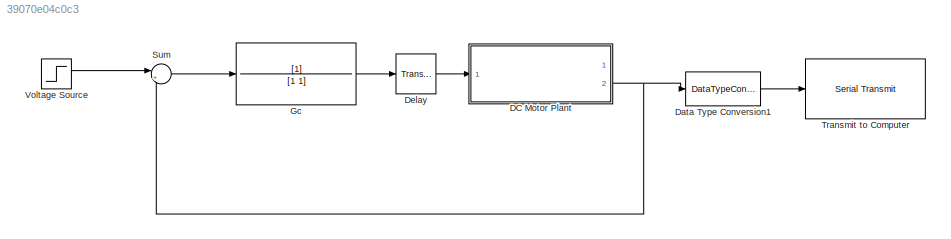
MODEL slx_39070e04c0c3
KIND model
CONFIG AbsTol = auto
CONFIG EnableMultiTasking = on
CONFIG FixedStep = auto
CONFIG MaxStep = auto
CONFIG MinStep = auto
CONFIG RelTol = 1e-3
CONFIG SampleTimeConstraint = Unconstrained
CONFIG Solver = FixedStepAuto
CONFIG SolverName = FixedStepAuto
CONFIG StartTime = 0.0
CONFIG StopTime = 10.0
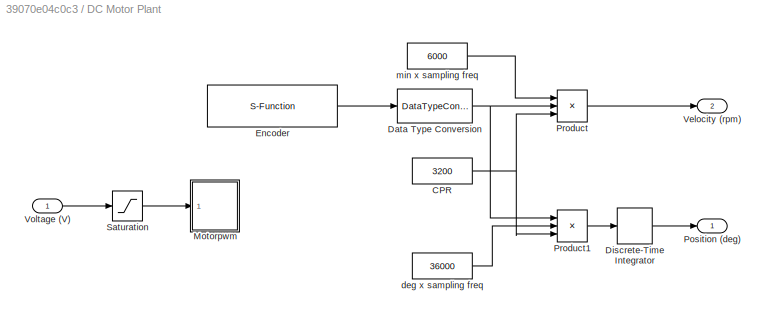
BLOCK [SubSystem] DC Motor Plant
  Ports = [1, 2]
  RequestExecContextInheritance = off
BLOCK [Constant] DC Motor Plant/CPR
  Value = 3200
BLOCK [DataTypeConversion] DC Motor Plant/Data Type Conversion
  OutDataTypeStr = double
  RndMeth = Round
  SaturateOnIntegerOverflow = off
BLOCK [DiscreteIntegrator] DC Motor Plant/Discrete-Time Integrator
  ICPrevOutput = DiscIntNeverNeededParam
  ICPrevScaledInput = DiscIntNeverNeededParam
  InitialConditionSetting = Auto
  Ports = [1, 1]
  SampleTime = -1
BLOCK [S-Function] DC Motor Plant/Encoder
  CopyFcn = set_param(gcbh,'LinkStatus','none')
  EnableBusSupport = off
  FunctionName = sfcn_encoder
  InitFcn = try, set_param(gcb,'FunctionName','sfcn_encoder'), end
  OpenFcn = sfunctionwizard(gcbh)
  Parameters = uint8(0),uint8(2),uint8(3)
  Ports = [0, 1]
  PreSaveFcn = try, set_param(gcb,'FunctionName','sfcn_encoder'), end
  SFcnIsStateOwnerBlock = off
  SFunctionDeploymentMode = off
  SFunctionModules = sfcn_encoder_wrapper
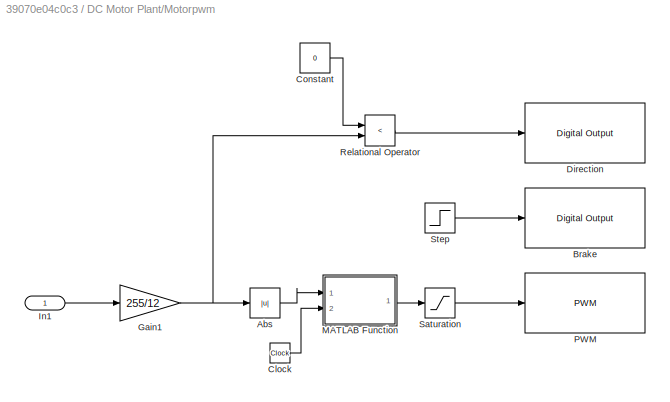
BLOCK [SubSystem] DC Motor Plant/Motorpwm
  Ports = [1]
  RequestExecContextInheritance = off
BLOCK [Abs] DC Motor Plant/Motorpwm/Abs
  SaturateOnIntegerOverflow = off
BLOCK [Reference] DC Motor Plant/Motorpwm/Brake  REF=arduinolib/Digital Output
  Ports = [1]
  SourceBlock = arduinolib/Digital Output
  SourceProductBaseCode = ARDUINO
  SourceType = Arduino Digital Output
BLOCK [Clock] DC Motor Plant/Motorpwm/Clock
BLOCK [Constant] DC Motor Plant/Motorpwm/Constant
  Value = 0
BLOCK [Reference] DC Motor Plant/Motorpwm/Direction   REF=arduinolib/Digital Output
  Ports = [1]
  SourceBlock = arduinolib/Digital Output
  SourceProductBaseCode = ARDUINO
  SourceType = Arduino Digital Output
BLOCK [Gain] DC Motor Plant/Motorpwm/Gain1
  Gain = 255/12
BLOCK [Inport] DC Motor Plant/Motorpwm/In1
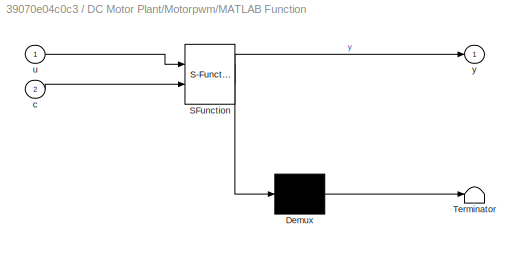
BLOCK [SubSystem] DC Motor Plant/Motorpwm/MATLAB Function
  ErrorFcn = Stateflow.Translate.translate
  PermitHierarchicalResolution = ExplicitOnly
  Ports = [2, 1]
  RequestExecContextInheritance = off
  SFBlockType = MATLAB Function
  TreatAsAtomicUnit = on
BLOCK [Demux] DC Motor Plant/Motorpwm/MATLAB Function/ Demux 
  Outputs = 1
  Ports = [1, 1]
BLOCK [S-Function] DC Motor Plant/Motorpwm/MATLAB Function/ SFunction 
  EnableBusSupport = off
  FunctionName = sf_sfun
  PortCounts = [2 2]
  Ports = [2, 2]
  SFcnIsStateOwnerBlock = off
  SFunctionDeploymentMode = off
  Tag = Stateflow S-Function lab3_step_DM_2019 1
BLOCK [Terminator] DC Motor Plant/Motorpwm/MATLAB Function/ Terminator 
BLOCK [Inport] DC Motor Plant/Motorpwm/MATLAB Function/c
  Port = 2
BLOCK [Inport] DC Motor Plant/Motorpwm/MATLAB Function/u
BLOCK [Outport] DC Motor Plant/Motorpwm/MATLAB Function/y
  VectorParamsAs1DForOutWhenUnconnected = off
BLOCK [Reference] DC Motor Plant/Motorpwm/PWM  REF=arduinolib/PWM
  Ports = [1]
  SourceBlock = arduinolib/PWM
  SourceProductBaseCode = ARDUINO
  SourceType = Arduino PWM
BLOCK [RelationalOperator] DC Motor Plant/Motorpwm/Relational Operator
  InputSameDT = off
  Operator = <
  OutDataTypeStr = boolean
  Ports = [2, 1]
  RndMeth = Simplest
BLOCK [Saturate] DC Motor Plant/Motorpwm/Saturation
  LowerLimit = 0
  UpperLimit = 255
BLOCK [Step] DC Motor Plant/Motorpwm/Step
  After = 0
  SampleTime = 0
  Time = 0
BLOCK [Outport] DC Motor Plant/Position (deg)
  VectorParamsAs1DForOutWhenUnconnected = off
BLOCK [Product] DC Motor Plant/Product
  Inputs = **/
  Ports = [3, 1]
BLOCK [Product] DC Motor Plant/Product1
  Inputs = **/
  Ports = [3, 1]
BLOCK [Saturate] DC Motor Plant/Saturation
  LowerLimit = -12
  UpperLimit = 12
BLOCK [Outport] DC Motor Plant/Velocity (rpm)
  Port = 2
  VectorParamsAs1DForOutWhenUnconnected = off
BLOCK [Inport] DC Motor Plant/Voltage (V)
BLOCK [Constant] DC Motor Plant/deg x sampling freq
  Value = 36000
BLOCK [Constant] DC Motor Plant/min x sampling freq
  Value = 6000
BLOCK [DataTypeConversion] Data Type Conversion1
  OutDataTypeStr = uint8
  RndMeth = Round
  SaturateOnIntegerOverflow = off
BLOCK [TransportDelay] Delay
  BufferSize = 128
  DelayTime = 0.01
  FixedBuffer = on
  Ports = [1, 1]
BLOCK [TransferFcn] Gc
  Denominator = [1 1]
BLOCK [Sum] Sum
  Inputs = |+-
  Ports = [2, 1]
BLOCK [Reference] Transmit to Computer  REF=arduinolib/Serial Transmit
  Ports = [1]
  SourceBlock = arduinolib/Serial Transmit
  SourceProductBaseCode = ARDUINO
  SourceType = Arduino Serial Transmit
BLOCK [Step] Voltage Source
  After = 40
  SampleTime = 0
  Time = 0
NET DC Motor Plant/CPR:1 -> DC Motor Plant/Product1:3, DC Motor Plant/Product:3
NET DC Motor Plant/Data Type Conversion:1 -> DC Motor Plant/Product1:1, DC Motor Plant/Product:2
LINE DC Motor Plant/Discrete-Time Integrator:1 -> DC Motor Plant/Position (deg):1
LINE DC Motor Plant/Encoder:1 -> DC Motor Plant/Data Type Conversion:1
LINE DC Motor Plant/Motorpwm/Abs:1 -> DC Motor Plant/Motorpwm/MATLAB Function:1
LINE DC Motor Plant/Motorpwm/Clock:1 -> DC Motor Plant/Motorpwm/MATLAB Function:2
LINE DC Motor Plant/Motorpwm/Constant:1 -> DC Motor Plant/Motorpwm/Relational Operator:1
NET DC Motor Plant/Motorpwm/Gain1:1 -> DC Motor Plant/Motorpwm/Abs:1, DC Motor Plant/Motorpwm/Relational Operator:2
LINE DC Motor Plant/Motorpwm/In1:1 -> DC Motor Plant/Motorpwm/Gain1:1
LINE DC Motor Plant/Motorpwm/MATLAB Function:1 -> DC Motor Plant/Motorpwm/Saturation:1
LINE DC Motor Plant/Motorpwm/Relational Operator:1 -> DC Motor Plant/Motorpwm/Direction :1
LINE DC Motor Plant/Motorpwm/Saturation:1 -> DC Motor Plant/Motorpwm/PWM:1
LINE DC Motor Plant/Motorpwm/Step:1 -> DC Motor Plant/Motorpwm/Brake:1
LINE DC Motor Plant/Product1:1 -> DC Motor Plant/Discrete-Time Integrator:1
LINE DC Motor Plant/Product:1 -> DC Motor Plant/Velocity (rpm):1
LINE DC Motor Plant/Saturation:1 -> DC Motor Plant/Motorpwm:1
LINE DC Motor Plant/Voltage (V):1 -> DC Motor Plant/Saturation:1
LINE DC Motor Plant/deg x sampling freq:1 -> DC Motor Plant/Product1:2
LINE DC Motor Plant/min x sampling freq:1 -> DC Motor Plant/Product:1
NET DC Motor Plant:2 -> Data Type Conversion1:1, Sum:2
LINE Data Type Conversion1:1 -> Transmit to Computer:1
LINE Delay:1 -> DC Motor Plant:1
LINE Gc:1 -> Delay:1
LINE Sum:1 -> Gc:1
LINE Voltage Source:1 -> Sum:1
note: NET lines group one-source signal fan-out (src -> all destinations, sorted); 1:1 wires keep LINE
CHART DC Motor Plant/Motorpwm/MATLAB Function states=1 transitions=1
  STATE_LABEL 'eML_blk_kernel()'
  STATE_LABEL 'SCRIPT:\nfunction y = fcn(u,c)\n%#codegen\nif c<10\n    y = u;\nelse\n    y=0;\nend'
